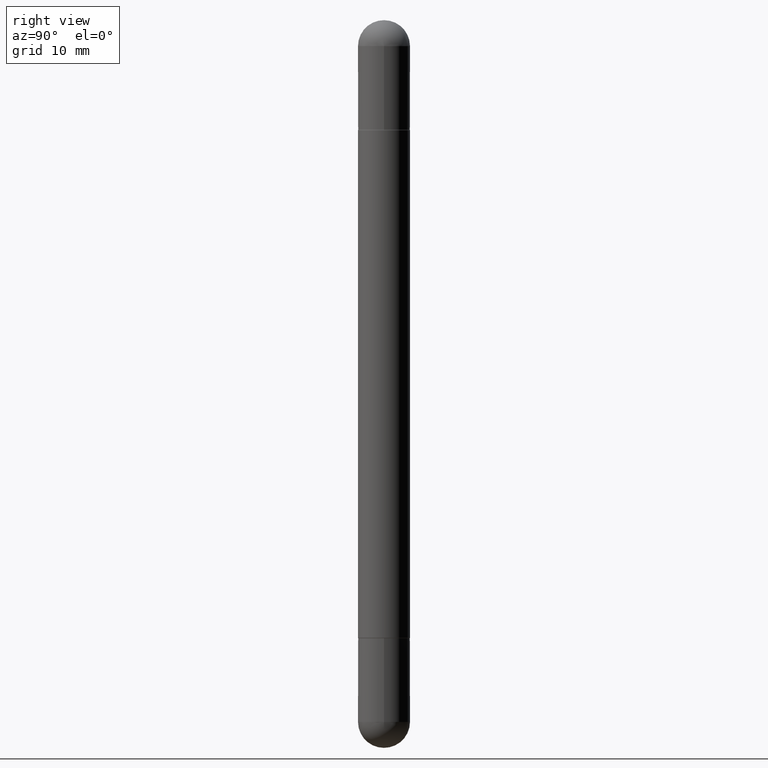
[diagram: clean part render]
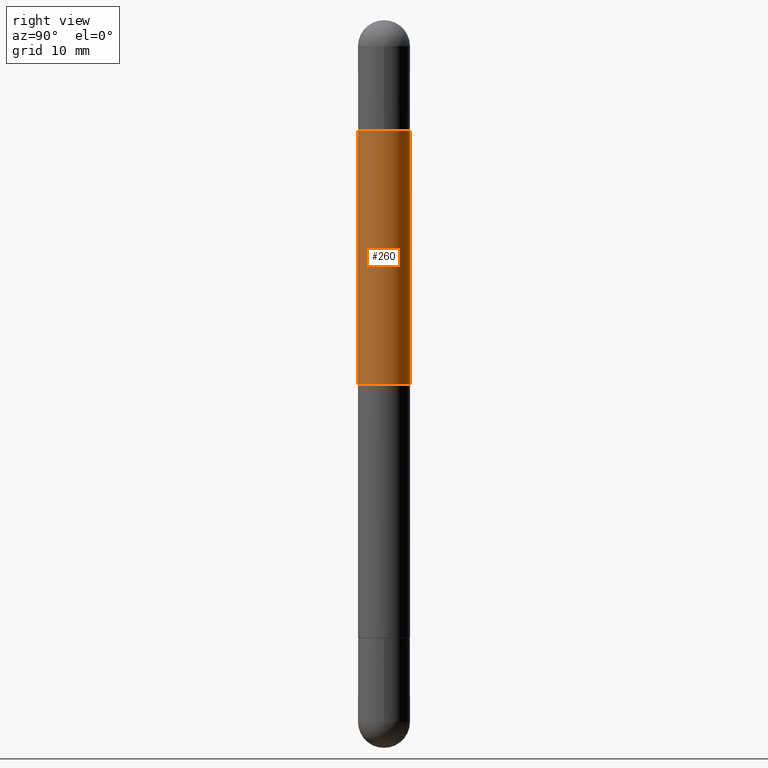
[diagram: same view with one face highlighted and labeled with its STEP entity id]
A machine part, right view. The second image highlights one B-rep face of the part: STEP entity #260.
In plain terms, the highlighted cylindrical surface (edge-blend (fillet) strip) has radius 2.2504 mm, axis along (-0, 0, -1).
Its self-contained STEP definition (entity closure, byte-faithful):
#9 = EDGE_CURVE ( 'NONE', #817, #777, #814, .T. ) ;
#12 = DIRECTION ( 'NONE',  ( -6.982962677686265922E-15, -1.000000000000000000, -3.854187349977787355E-15 ) ) ;
#51 = DIRECTION ( 'NONE',  ( -6.982962677686265922E-15, -1.000000000000000000, -6.166699759964469551E-15 ) ) ;
#54 = LINE ( 'NONE', #189, #812 ) ;
#87 = DIRECTION ( 'NONE',  ( -1.000000000000000000, 0.000000000000000000, 0.000000000000000000 ) ) ;
#104 = LINE ( 'NONE', #215, #295 ) ;
#113 = DIRECTION ( 'NONE',  ( -2.445161581846673899E-29, 3.491921301581948047E-15, -1.000000000000000000 ) ) ;
#155 = CARTESIAN_POINT ( 'NONE',  ( -6.186904932429535505E-16, -0.08860000000000764486, -0.3750000000000000555 ) ) ;
#172 = CIRCLE ( 'NONE', #221, 0.08860000000000024800 ) ;
#179 = VERTEX_POINT ( 'NONE', #451 ) ;
#189 = CARTESIAN_POINT ( 'NONE',  ( 6.078401226025584357E-16, 0.08860000000000010922, -2.480299999999999727 ) ) ;
#215 = CARTESIAN_POINT ( 'NONE',  ( -6.186904932430039390E-16, -0.08860000000000010922, -2.480300000000001059 ) ) ;
#221 = AXIS2_PLACEMENT_3D ( 'NONE', #776, #577, #12 ) ;
#260 = ADVANCED_FACE ( 'NONE', ( #813 ), #614, .T. ) ;
#264 = EDGE_LOOP ( 'NONE', ( #461, #292, #411, #737 ) ) ;
#273 = CARTESIAN_POINT ( 'NONE',  ( -6.186904932429630168E-16, -0.08860000000000445297, -1.240150000000000086 ) ) ;
#292 = ORIENTED_EDGE ( 'NONE', *, *, #637, .F. ) ;
#295 = VECTOR ( 'NONE', #780, 39.37007874015748143 ) ;
#302 = CARTESIAN_POINT ( 'NONE',  ( 6.078401226026096131E-16, 0.08859999999999577935, -1.240150000000000086 ) ) ;
#411 = ORIENTED_EDGE ( 'NONE', *, *, #743, .T. ) ;
#432 = AXIS2_PLACEMENT_3D ( 'NONE', #522, #578, #87 ) ;
#451 = CARTESIAN_POINT ( 'NONE',  ( 6.078401226026106978E-16, 0.08859999999999286502, -0.3749999999999993339 ) ) ;
#456 = EDGE_CURVE ( 'NONE', #179, #817, #54, .T. ) ;
#461 = ORIENTED_EDGE ( 'NONE', *, *, #456, .F. ) ;
#522 = CARTESIAN_POINT ( 'NONE',  ( 3.032367135727152857E-29, -4.330506202156853128E-15, -1.240150000000000086 ) ) ;
#577 = DIRECTION ( 'NONE',  ( 2.445161581846673899E-29, -3.491921301581947653E-15, 1.000000000000000000 ) ) ;
#578 = DIRECTION ( 'NONE',  ( -0.000000000000000000, -0.000000000000000000, -1.000000000000000000 ) ) ;
#614 = CYLINDRICAL_SURFACE ( 'NONE', #775, 0.08860000000000010922 ) ;
#629 = DIRECTION ( 'NONE',  ( -2.445161581846673899E-29, 3.491921301581947653E-15, -1.000000000000000000 ) ) ;
#637 = EDGE_CURVE ( 'NONE', #682, #179, #172, .T. ) ;
#682 = VERTEX_POINT ( 'NONE', #155 ) ;
#737 = ORIENTED_EDGE ( 'NONE', *, *, #9, .F. ) ;
#743 = EDGE_CURVE ( 'NONE', #682, #777, #104, .T. ) ;
#775 = AXIS2_PLACEMENT_3D ( 'NONE', #816, #629, #51 ) ;
#776 = CARTESIAN_POINT ( 'NONE',  ( 5.147798678261803388E-29, -7.351541916220477463E-15, -0.3749999999999996669 ) ) ;
#777 = VERTEX_POINT ( 'NONE', #273 ) ;
#780 = DIRECTION ( 'NONE',  ( -2.445161581846673899E-29, 3.491921301581948047E-15, -1.000000000000000000 ) ) ;
#812 = VECTOR ( 'NONE', #113, 39.37007874015748143 ) ;
#813 = FACE_OUTER_BOUND ( 'NONE', #264, .T. ) ;
#814 = CIRCLE ( 'NONE', #432, 0.08860000000000010922 ) ;
#816 = CARTESIAN_POINT ( 'NONE',  ( 0.000000000000000000, 0.000000000000000000, -2.480300000000000171 ) ) ;
#817 = VERTEX_POINT ( 'NONE', #302 ) ;